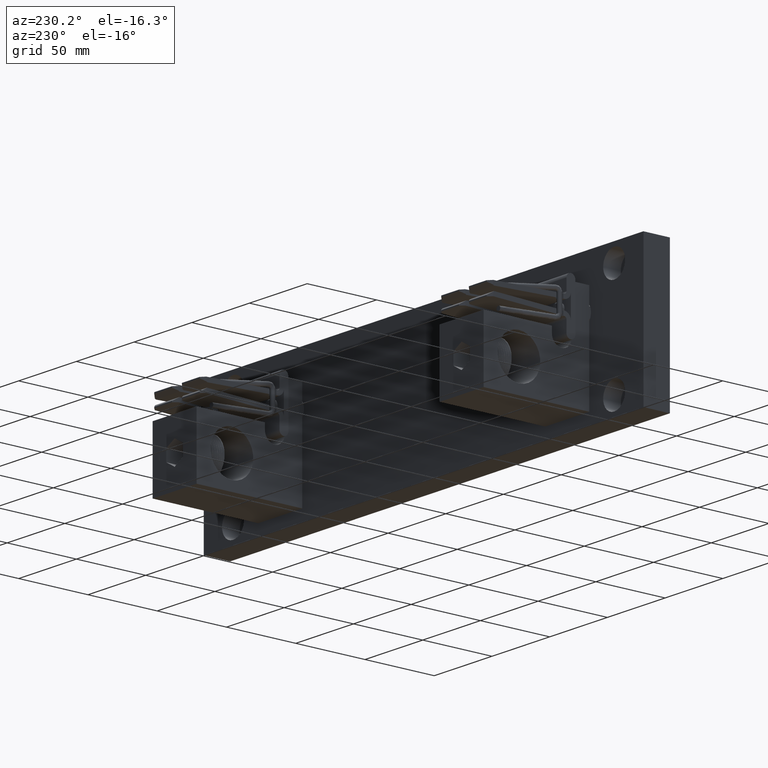
[diagram: clean part render]
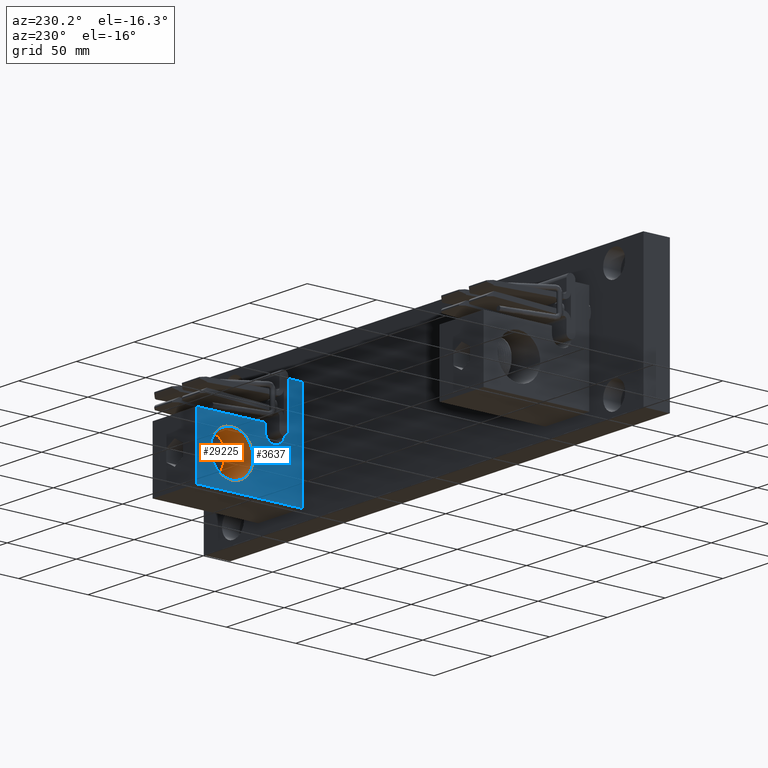
[diagram: same view with the hole feature highlighted: cylindrical wall and planar end face, labeled with their STEP entity ids]
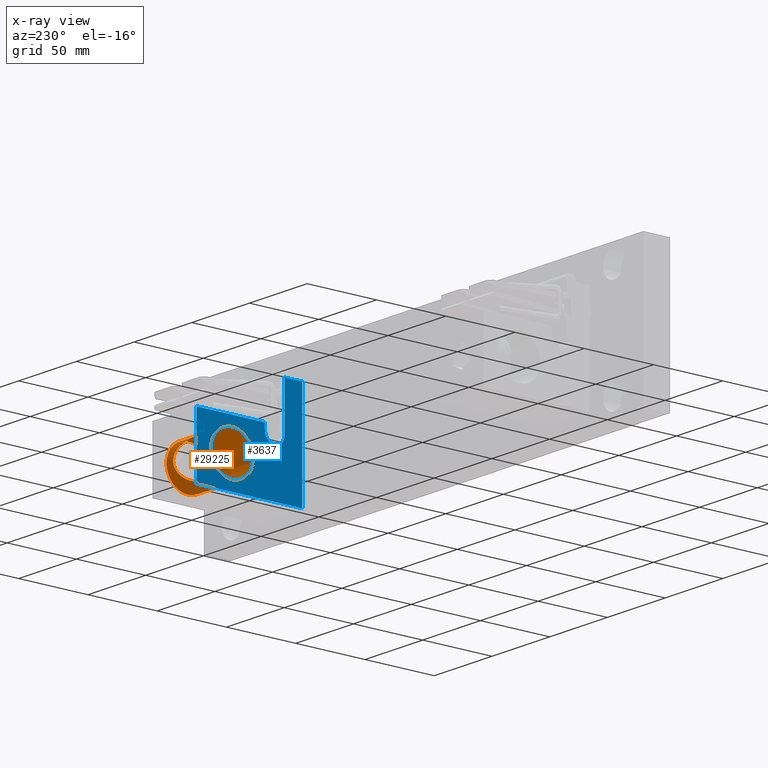
[diagram: x-ray of the same camera — body ghosted, the hole faces saturated]
A machine part, auxiliary view. The highlighted faces form one hole feature of diameter 30.9372 mm: the cylindrical wall (entity #29225, orange) and its adjacent planar end face (entity #3637, blue) — they share a circular edge in the B-rep.
The next image is the same camera in x-ray (body ghosted, the hole faces saturated) — the bore reads through the body.
Wall:
#113 = CARTESIAN_POINT ( 'NONE',  ( 9.280179660203495800, 2.097324770169595200, -1.255977167398705500 ) ) ;
#172 = DIRECTION ( 'NONE',  ( -1.000000000000000000, 3.491106940328970000E-017, 2.775557561562891400E-016 ) ) ;
#203 = CARTESIAN_POINT ( 'NONE',  ( 9.342198515827526300, 2.045330027291612400, -1.646601566682456900 ) ) ;
#289 = CARTESIAN_POINT ( 'NONE',  ( 10.05333738346930000, 1.907558894405746200, -1.827675475046670400 ) ) ;
#307 = CARTESIAN_POINT ( 'NONE',  ( 9.664107462186631600, 1.835360832578286000, -1.883389140935382000 ) ) ;
#406 = CARTESIAN_POINT ( 'NONE',  ( 10.30852669709524600, 2.104772704688471700, -1.448951375156654100 ) ) ;
#471 = EDGE_CURVE ( 'NONE', #29269, #29269, #11773, .T. ) ;
#905 = CARTESIAN_POINT ( 'NONE',  ( 10.25510471420381400, 2.059592964053454300, -1.132284568991641900 ) ) ;
#1007 = CARTESIAN_POINT ( 'NONE',  ( 9.964749116968567600, 1.856666003614545500, -0.8812888386536245100 ) ) ;
#1083 = CIRCLE ( 'NONE', #25017, 0.6089999999999994300 ) ;
#1111 = CARTESIAN_POINT ( 'NONE',  ( 9.699312747223444800, 1.824085987010029000, -0.8593874279365532100 ) ) ;
#1197 = CARTESIAN_POINT ( 'NONE',  ( 9.380811610457286100, 2.013994107817656000, -1.046868209804588100 ) ) ;
#1501 = AXIS2_PLACEMENT_3D ( 'NONE', #13739, #172, #16071 ) ;
#1852 = EDGE_LOOP ( 'NONE', ( #8875 ) ) ;
#2376 = CARTESIAN_POINT ( 'NONE',  ( 9.266642865541179200, 2.108920179919667500, -1.336854587295540200 ) ) ;
#2472 = AXIS2_PLACEMENT_3D ( 'NONE', #22743, #20899, #5509 ) ;
#2482 = CARTESIAN_POINT ( 'NONE',  ( 9.380132644617587400, 2.014533919914874600, -1.702311844670035600 ) ) ;
#2558 = CARTESIAN_POINT ( 'NONE',  ( 10.10681634831635000, 1.943709035272325400, -1.792902677304044800 ) ) ;
#2573 = CARTESIAN_POINT ( 'NONE',  ( 9.716131415398185900, 1.819396299210058100, -1.893537500722201100 ) ) ;
#3021 = EDGE_LOOP ( 'NONE', ( #15742 ) ) ;
#3058 = CARTESIAN_POINT ( 'NONE',  ( 10.31342491730299000, 2.108978440829739400, -1.394029742544431000 ) ) ;
#3168 = CARTESIAN_POINT ( 'NONE',  ( 10.20939119500257800, 2.022243346142678100, -1.061323011078412400 ) ) ;
#3267 = CARTESIAN_POINT ( 'NONE',  ( 9.915526994470585700, 1.835222296419632300, -0.8665196678240912900 ) ) ;
#3377 = CARTESIAN_POINT ( 'NONE',  ( 9.664875633266415600, 1.835074104484781400, -0.8664225621004174600 ) ) ;
#4454 = CARTESIAN_POINT ( 'NONE',  ( 9.790000000000000900, 1.811257285055306100, -1.898450000000000900 ) ) ;
#4706 = CARTESIAN_POINT ( 'NONE',  ( 9.267453706317184000, 2.108222631414180500, -1.410843202185365000 ) ) ;
#4781 = CARTESIAN_POINT ( 'NONE',  ( 9.790000000000000900, 1.811257285055306600, -1.898450000000000600 ) ) ;
#4796 = CARTESIAN_POINT ( 'NONE',  ( 9.435928179579315500, 1.971372496849789000, -1.760866404997216500 ) ) ;
#4879 = CARTESIAN_POINT ( 'NONE',  ( 10.16630399076150600, 1.988292195777868100, -1.739219579181466900 ) ) ;
#4892 = CARTESIAN_POINT ( 'NONE',  ( 9.771296366142740600, 1.811257285055306600, -1.898450000000000900 ) ) ;
#4955 = CARTESIAN_POINT ( 'NONE',  ( 10.54000000000000100, 1.499999999999999800, -0.7660000000000015700 ) ) ;
#5265 = VERTEX_POINT ( 'NONE', #21934 ) ;
#5392 = CARTESIAN_POINT ( 'NONE',  ( 10.31253900496889700, 2.108216363005187800, -1.339037598365025800 ) ) ;
#5503 = CARTESIAN_POINT ( 'NONE',  ( 10.17787982591034900, 1.997281598853107400, -1.023121777459411700 ) ) ;
#5509 = DIRECTION ( 'NONE',  ( 0.0000000000000000000, 0.0000000000000000000, 1.000000000000000000 ) ) ;
#5604 = CARTESIAN_POINT ( 'NONE',  ( 9.863475976142373400, 1.819311141131618100, -0.8564103436430562400 ) ) ;
#5701 = CARTESIAN_POINT ( 'NONE',  ( 9.615882349474922800, 1.856355943382902900, -0.8810654201648838700 ) ) ;
#6887 = CARTESIAN_POINT ( 'NONE',  ( 9.326117067337564800, 2.058610361940258500, -1.131876949619347500 ) ) ;
#6983 = CARTESIAN_POINT ( 'NONE',  ( 9.274116560606360700, 2.102505630132347500, -1.465512193281022900 ) ) ;
#7064 = CARTESIAN_POINT ( 'NONE',  ( 9.827036078031509800, 1.812950835973183400, -1.897452140939300400 ) ) ;
#7081 = CARTESIAN_POINT ( 'NONE',  ( 9.472969311673287200, 1.944202337401933300, -1.791834356217677900 ) ) ;
#7177 = CARTESIAN_POINT ( 'NONE',  ( 10.19892022436389000, 2.013861333578023800, -1.702193664357927000 ) ) ;
#7222 = DIRECTION ( 'NONE',  ( -1.000000000000000000, 3.491106940328970000E-017, 2.775557561562891400E-016 ) ) ;
#7679 = CARTESIAN_POINT ( 'NONE',  ( 10.30845891483400800, 2.104714970127615100, -1.302303516476782900 ) ) ;
#7780 = CARTESIAN_POINT ( 'NONE',  ( 10.13223287827729300, 1.962364658960769700, -0.9776191655282185900 ) ) ;
#7889 = CARTESIAN_POINT ( 'NONE',  ( 9.826939586945515600, 1.813306831308582500, -0.8527732884213834500 ) ) ;
#7994 = CARTESIAN_POINT ( 'NONE',  ( 9.554721188711177100, 1.889356783935038900, -0.9062514264342249600 ) ) ;
#8875 = ORIENTED_EDGE ( 'NONE', *, *, #28782, .F. ) ;
#9156 = CARTESIAN_POINT ( 'NONE',  ( 9.304228463084081500, 2.076923159088707400, -1.179220980598104700 ) ) ;
#9248 = CARTESIAN_POINT ( 'NONE',  ( 9.286253415734380600, 2.092142839192565600, -1.518401615495040200 ) ) ;
#9324 = CARTESIAN_POINT ( 'NONE',  ( 9.880827100769188600, 1.823825352755908700, -1.890813781242954000 ) ) ;
#9342 = CARTESIAN_POINT ( 'NONE',  ( 9.525959708530040300, 1.907699496602450500, -1.828111436417922300 ) ) ;
#9428 = CARTESIAN_POINT ( 'NONE',  ( 10.23772033283577800, 2.045168269973869400, -1.648230773953770000 ) ) ;
#9897 = FACE_OUTER_BOUND ( 'NONE', #29247, .T. ) ;
#9944 = CARTESIAN_POINT ( 'NONE',  ( 10.30392146881436900, 2.100828939997650700, -1.275165215486350200 ) ) ;
#10043 = CARTESIAN_POINT ( 'NONE',  ( 10.06733353357101500, 1.916772626162443800, -0.9307649896137129000 ) ) ;
#10139 = CARTESIAN_POINT ( 'NONE',  ( 9.799280635462768200, 1.811260116634077400, -0.8515516837321189800 ) ) ;
#10242 = CARTESIAN_POINT ( 'NONE',  ( 9.486711565219154700, 1.934477017025520100, -0.9480676338777450600 ) ) ;
#10799 = ORIENTED_EDGE ( 'NONE', *, *, #22554, .T. ) ;
#11428 = CARTESIAN_POINT ( 'NONE',  ( 9.289629798954793600, 2.089278617203078200, -1.221023262503960100 ) ) ;
#11518 = CARTESIAN_POINT ( 'NONE',  ( 9.303624671840648100, 2.077431765507186800, -1.569278850323326100 ) ) ;
#11592 = CARTESIAN_POINT ( 'NONE',  ( 9.964672663139234400, 1.856022455920142100, -1.869542607008254600 ) ) ;
#11606 = CARTESIAN_POINT ( 'NONE',  ( 9.599248436497982000, 1.864841591607055800, -1.862731617612935600 ) ) ;
#11696 = CARTESIAN_POINT ( 'NONE',  ( 10.28306021894503400, 2.083034517968975800, -1.554258277017968700 ) ) ;
#11773 = CIRCLE ( 'NONE', #2472, 0.6089999999999999900 ) ;
#12187 = CARTESIAN_POINT ( 'NONE',  ( 10.29362008017184500, 2.092035339655246700, -1.231176567592090900 ) ) ;
#12296 = CARTESIAN_POINT ( 'NONE',  ( 10.02505908174886600, 1.889885770684362100, -0.9070169607372493600 ) ) ;
#12402 = CARTESIAN_POINT ( 'NONE',  ( 9.753437543881730700, 1.812883834307803100, -0.8525075735982097200 ) ) ;
#12500 = CARTESIAN_POINT ( 'NONE',  ( 9.448704020298402300, 1.961832882506712200, -0.9777884892052093300 ) ) ;
#13681 = CARTESIAN_POINT ( 'NONE',  ( 9.282341377183609400, 2.095480345256516100, -1.247076543476164400 ) ) ;
#13739 = CARTESIAN_POINT ( 'NONE',  ( 9.040000000000000900, 1.499999999999999800, -1.375000000000001100 ) ) ;
#13776 = CARTESIAN_POINT ( 'NONE',  ( 9.325392732115382400, 2.059212466608186800, -1.616730566706456200 ) ) ;
#13851 = CARTESIAN_POINT ( 'NONE',  ( 10.02487843888705600, 1.889776289595450200, -1.843074547681421000 ) ) ;
#13865 = CARTESIAN_POINT ( 'NONE',  ( 9.647341380086791300, 1.842086136445423700, -1.878924161717898000 ) ) ;
#13945 = CARTESIAN_POINT ( 'NONE',  ( 10.30557238892089900, 2.102239204130067000, -1.467272621108470100 ) ) ;
#14056 = VERTEX_POINT ( 'NONE', #4454 ) ;
#14428 = CARTESIAN_POINT ( 'NONE',  ( 10.27629466320642300, 2.077363659359441300, -1.180511642204475200 ) ) ;
#14536 = CARTESIAN_POINT ( 'NONE',  ( 9.980303333754980200, 1.864606734211517800, -0.8870929829268117100 ) ) ;
#14631 = CARTESIAN_POINT ( 'NONE',  ( 9.717047519317683100, 1.819577241989803800, -0.8565808280470933500 ) ) ;
#14739 = CARTESIAN_POINT ( 'NONE',  ( 9.401955239346211400, 1.997227208084751700, -1.022210476329406600 ) ) ;
#15742 = ORIENTED_EDGE ( 'NONE', *, *, #471, .F. ) ;
#15858 = FACE_BOUND ( 'NONE', #1852, .T. ) ;
#15920 = CARTESIAN_POINT ( 'NONE',  ( 9.270580536859522900, 2.105526011989683700, -1.300593678888188700 ) ) ;
#16000 = CARTESIAN_POINT ( 'NONE',  ( 9.808703633857257700, 1.811257285055306600, -1.898450000000000600 ) ) ;
#16014 = CARTESIAN_POINT ( 'NONE',  ( 9.351322643546554400, 2.037854183421200300, -1.661082465344141800 ) ) ;
#16071 = DIRECTION ( 'NONE',  ( 0.0000000000000000000, 0.0000000000000000000, 1.000000000000000000 ) ) ;
#16093 = CARTESIAN_POINT ( 'NONE',  ( 10.06704365446946200, 1.916581669018505100, -1.819410341866392700 ) ) ;
#16108 = CARTESIAN_POINT ( 'NONE',  ( 9.698472518594847700, 1.824029685064318100, -1.890685146039456000 ) ) ;
#16185 = CARTESIAN_POINT ( 'NONE',  ( 10.31244052664127300, 2.108131723077256900, -1.412344847179440000 ) ) ;
#16656 = CARTESIAN_POINT ( 'NONE',  ( 10.23827175813145700, 2.045619674513944600, -1.102636943290466400 ) ) ;
#16751 = CARTESIAN_POINT ( 'NONE',  ( 9.932399410262315000, 1.841980958967212000, -0.8710055826933955600 ) ) ;
#16854 = CARTESIAN_POINT ( 'NONE',  ( 9.690601547277504200, 1.826642790545077300, -0.8609993639652586700 ) ) ;
#16947 = CARTESIAN_POINT ( 'NONE',  ( 9.352137325899093400, 2.037190139223976200, -1.087680303542287100 ) ) ;
#18173 = CARTESIAN_POINT ( 'NONE',  ( 9.266505975167815400, 2.109037840360608500, -1.392128149778477700 ) ) ;
#18264 = CARTESIAN_POINT ( 'NONE',  ( 9.401320636489710800, 1.997723881484822200, -1.727090316491668400 ) ) ;
#18343 = CARTESIAN_POINT ( 'NONE',  ( 10.13155955008753000, 1.961863544495720200, -1.772969530909886500 ) ) ;
#18357 = CARTESIAN_POINT ( 'NONE',  ( 9.752682457353120800, 1.812969690460924700, -1.897441488070291900 ) ) ;
#18854 = CARTESIAN_POINT ( 'NONE',  ( 10.31347413874603400, 2.109020747822007500, -1.357376117934730600 ) ) ;
#18949 = CARTESIAN_POINT ( 'NONE',  ( 10.19915342784114500, 2.014047426531653700, -1.048101674319966300 ) ) ;
#19056 = CARTESIAN_POINT ( 'NONE',  ( 9.881110461621938500, 1.823910601698979700, -0.8592402125663749500 ) ) ;
#19149 = CARTESIAN_POINT ( 'NONE',  ( 9.648265642599243500, 1.841703424372293800, -0.8708177935374356000 ) ) ;
#20310 = B_SPLINE_CURVE_WITH_KNOTS ( 'NONE', 3,
 ( #4781, #16000, #7064, #22726, #9324, #25020, #11592, #27295, #13851, #289, #16093, #2558, #18343, #4879, #20589, #7177, #22821, #9428, #25124, #11696, #27393, #13945, #406, #16185, #3058, #18854, #5392, #21088, #7679, #23341, #9944, #25637, #12187, #27886, #14428, #905, #16656, #3168, #18949, #5503, #21189, #7780, #23436, #10043, #25732, #12296, #27977, #14536, #1007, #16751, #3267, #19056, #5604, #21289, #7889, #23537, #10139, #25829, #12402, #28086, #14631, #1111, #16854, #3377, #19149, #5701, #21392, #7994, #23633, #10242, #25920, #12500, #28180, #14739, #1197, #16947, #27985, #6887, #22562, #9156, #24838, #11428, #27120, #13681, #113, #15920, #2376, #18173, #4706, #20414, #6983, #22642, #9248, #24931, #11518, #27212, #13776, #203, #16014, #2482, #18264, #4796, #20510, #7081, #22739, #9342, #25037, #11606, #27312, #13865, #307, #16108, #2573, #18357, #4892, #20604 ),
 .UNSPECIFIED., .T., .F.,
 ( 4, 2, 2, 2, 2, 2, 2, 2, 2, 2, 2, 2, 2, 2, 2, 2, 2, 2, 2, 2, 2, 2, 2, 2, 2, 2, 2, 2, 2, 2, 2, 2, 2, 2, 2, 2, 2, 2, 2, 2, 2, 2, 2, 2, 2, 2, 2, 2, 2, 2, 2, 2, 2, 2, 2, 2, 2, 4 ),
 ( 0.0000000000000000000, 0.001400456203850310100, 0.002800912407700701800, 0.005601824815401486800, 0.007002281019251809300, 0.008402737223102130900, 0.01120364963080277900, 0.01260410583465315500, 0.01400456203850352800, 0.01680547444620428600, 0.01960638685390505100, 0.02100684305775540900, 0.02240729926160576700, 0.02380775546545614900, 0.02450798356738133700, 0.02520821166930652800, 0.02660866787315694500, 0.02800912407700735500, 0.03081003648470810600, 0.03221049268855848800, 0.03361094889240887100, 0.03641186130010973900, 0.03781231750396017700, 0.03921277370781060800, 0.04061322991166104600, 0.04201368611551147700, 0.04341414231936191500, 0.04411437042128713000, 0.04481459852321235300, 0.04621505472706279000, 0.04691528282898796400, 0.04761551093091313800, 0.04901596713476356900, 0.05041642333861400000, 0.05321733574631479900, 0.05461779195016516800, 0.05601824815401553600, 0.05881916056171621700, 0.06021961676556655800, 0.06162007296941689900, 0.06302052917326724000, 0.06372075727519238600, 0.06442098537711753200, 0.06722189778481815800, 0.06862235398866847700, 0.07002281019251878300, 0.07142326639636908900, 0.07282372260021940900, 0.07422417880406971500, 0.07562463500792002100, 0.07842554741562067500, 0.07982600361947102300, 0.08122645982332137000, 0.08402737223102213500, 0.08542782843487251000, 0.08682828463872288600, 0.08822874084257327500, 0.08962919704642365000 ),
 .UNSPECIFIED. ) ;
#20414 = CARTESIAN_POINT ( 'NONE',  ( 9.271266990211867000, 2.104949647298514300, -1.447494335921463400 ) ) ;
#20510 = CARTESIAN_POINT ( 'NONE',  ( 9.447940679144762700, 1.962397921920482100, -1.771553601522376100 ) ) ;
#20589 = CARTESIAN_POINT ( 'NONE',  ( 10.17753042314375200, 1.997008600644645900, -1.727266397812512500 ) ) ;
#20604 = CARTESIAN_POINT ( 'NONE',  ( 9.790000000000000900, 1.811257285055306600, -1.898450000000000600 ) ) ;
#20643 = CARTESIAN_POINT ( 'NONE',  ( 9.040000000000000900, 1.499999999999999800, -1.375000000000001100 ) ) ;
#20899 = DIRECTION ( 'NONE',  ( -1.000000000000000000, 3.491106940328970000E-017, 2.775557561562891400E-016 ) ) ;
#21088 = CARTESIAN_POINT ( 'NONE',  ( 10.30966745986850300, 2.105751702514752700, -1.311511933876268600 ) ) ;
#21189 = CARTESIAN_POINT ( 'NONE',  ( 10.16679744456471100, 1.988673276408671000, -1.011293620774445600 ) ) ;
#21289 = CARTESIAN_POINT ( 'NONE',  ( 9.836213923088394000, 1.814542161335162200, -0.8535139619554511500 ) ) ;
#21392 = CARTESIAN_POINT ( 'NONE',  ( 9.600108044630147200, 1.864390483379951600, -0.8869310415257180000 ) ) ;
#21934 = CARTESIAN_POINT ( 'NONE',  ( 9.040000000000000900, 1.499999999999999800, -0.7660000000000015700 ) ) ;
#22554 = EDGE_CURVE ( 'NONE', #5265, #5265, #1083, .T. ) ;
#22562 = CARTESIAN_POINT ( 'NONE',  ( 9.318320873842974800, 2.065108435140991200, -1.147355073714868600 ) ) ;
#22642 = CARTESIAN_POINT ( 'NONE',  ( 9.281609623974802000, 2.096102412120274000, -1.500965891169428100 ) ) ;
#22726 = CARTESIAN_POINT ( 'NONE',  ( 9.863057224218724900, 1.819223922460242000, -1.893642991505207300 ) ) ;
#22739 = CARTESIAN_POINT ( 'NONE',  ( 9.485976779782937700, 1.934990048804267700, -1.801411328152656300 ) ) ;
#22743 = CARTESIAN_POINT ( 'NONE',  ( 10.54000000000000100, 1.499999999999999800, -1.375000000000001600 ) ) ;
#22821 = CARTESIAN_POINT ( 'NONE',  ( 10.20904890506134200, 2.021968911426762700, -1.689125898501507800 ) ) ;
#22873 = DIRECTION ( 'NONE',  ( 0.0000000000000000000, 0.0000000000000000000, 1.000000000000000000 ) ) ;
#23341 = CARTESIAN_POINT ( 'NONE',  ( 10.30558632586584300, 2.102253939916893800, -1.284142057762349500 ) ) ;
#23436 = CARTESIAN_POINT ( 'NONE',  ( 10.10746273818178200, 1.944163742256489000, -0.9575646929766301600 ) ) ;
#23537 = CARTESIAN_POINT ( 'NONE',  ( 9.808486448002007300, 1.811670316553646100, -0.8517949516583489500 ) ) ;
#23633 = CARTESIAN_POINT ( 'NONE',  ( 9.526611410314776800, 1.907278616284581600, -0.9215165681285758500 ) ) ;
#24658 = CYLINDRICAL_SURFACE ( 'NONE', #1501, 0.6089999999999996500 ) ;
#24838 = CARTESIAN_POINT ( 'NONE',  ( 9.297918731863175500, 2.082251220991548500, -1.195631627133869400 ) ) ;
#24931 = CARTESIAN_POINT ( 'NONE',  ( 9.297308042341645900, 2.082767437310099700, -1.552705597392540300 ) ) ;
#25017 = AXIS2_PLACEMENT_3D ( 'NONE', #20643, #7222, #22873 ) ;
#25020 = CARTESIAN_POINT ( 'NONE',  ( 9.932800141399544800, 1.840883814953337100, -1.879838675948488900 ) ) ;
#25037 = CARTESIAN_POINT ( 'NONE',  ( 9.554059300147242700, 1.889766126412528100, -1.843407341791490700 ) ) ;
#25124 = CARTESIAN_POINT ( 'NONE',  ( 10.25458164257659500, 2.059157377002534000, -1.618733064573550900 ) ) ;
#25637 = CARTESIAN_POINT ( 'NONE',  ( 10.29826720525651300, 2.095997328484607200, -1.248533475616817400 ) ) ;
#25732 = CARTESIAN_POINT ( 'NONE',  ( 10.05347108801948900, 1.907645871427263100, -0.9224031786147318700 ) ) ;
#25829 = CARTESIAN_POINT ( 'NONE',  ( 9.771725101368517100, 1.811251665810572600, -0.8515466586474921300 ) ) ;
#25920 = CARTESIAN_POINT ( 'NONE',  ( 9.473800936594878800, 1.943608513559268000, -0.9575337350514703200 ) ) ;
#27099 = FACE_OUTER_BOUND ( 'NONE', #3021, .T. ) ;
#27120 = CARTESIAN_POINT ( 'NONE',  ( 9.287063240953992600, 2.091460013751302000, -1.229616698176387200 ) ) ;
#27212 = CARTESIAN_POINT ( 'NONE',  ( 9.317663730719253600, 2.065657171131666900, -1.601282302107391200 ) ) ;
#27295 = CARTESIAN_POINT ( 'NONE',  ( 10.01009543489003000, 1.881002868824170400, -1.850214329291778300 ) ) ;
#27312 = CARTESIAN_POINT ( 'NONE',  ( 9.614826400650681400, 1.856871451396171900, -1.868563828384569800 ) ) ;
#27393 = CARTESIAN_POINT ( 'NONE',  ( 10.29413227921642700, 2.092464974105978600, -1.520490332487708800 ) ) ;
#27886 = CARTESIAN_POINT ( 'NONE',  ( 10.28265564908501200, 2.082736858988501400, -1.197211428132991800 ) ) ;
#27977 = CARTESIAN_POINT ( 'NONE',  ( 10.01045932556905000, 1.881215196476327700, -0.8999565262871630500 ) ) ;
#27985 = CARTESIAN_POINT ( 'NONE',  ( 9.343091629753422100, 2.044596412628637300, -1.101926564006240300 ) ) ;
#28086 = CARTESIAN_POINT ( 'NONE',  ( 9.726123707825053100, 1.817617496322948600, -0.8553813577399892500 ) ) ;
#28180 = CARTESIAN_POINT ( 'NONE',  ( 9.436622580070857000, 1.970850787498548400, -0.9884975782354443700 ) ) ;
#28782 = EDGE_CURVE ( 'NONE', #14056, #14056, #20310, .T. ) ;
#29225 = ADVANCED_FACE ( 'NONE', ( #9897, #27099, #15858 ), #24658, .F. ) ;
#29247 = EDGE_LOOP ( 'NONE', ( #10799 ) ) ;
#29269 = VERTEX_POINT ( 'NONE', #4955 ) ;
End face:
#87 = LINE ( 'NONE', #5402, #19160 ) ;
#218 = CARTESIAN_POINT ( 'NONE',  ( 9.040000000000000900, -6.829619984160658000E-017, 0.6249999999999983300 ) ) ;
#607 = EDGE_CURVE ( 'NONE', #17572, #19977, #15680, .T. ) ;
#887 = CARTESIAN_POINT ( 'NONE',  ( 9.040000000000000900, -0.5000000000000001100, 0.6249999999999983300 ) ) ;
#909 = VERTEX_POINT ( 'NONE', #14672 ) ;
#1048 = VECTOR ( 'NONE', #7274, 39.37007874015748100 ) ;
#1083 = CIRCLE ( 'NONE', #25017, 0.6089999999999994300 ) ;
#1198 = VERTEX_POINT ( 'NONE', #12986 ) ;
#1323 = EDGE_CURVE ( 'NONE', #18828, #1198, #26011, .T. ) ;
#1359 = EDGE_CURVE ( 'NONE', #909, #18828, #27722, .T. ) ;
#2457 = ORIENTED_EDGE ( 'NONE', *, *, #1323, .T. ) ;
#2812 = EDGE_CURVE ( 'NONE', #17714, #14703, #87, .T. ) ;
#2882 = CARTESIAN_POINT ( 'NONE',  ( 9.040000000000000900, -2.048885995248197400E-016, -0.6700000000000013700 ) ) ;
#3637 = ADVANCED_FACE ( 'NONE', ( #26908, #18082 ), #18044, .T. ) ;
#4104 = CARTESIAN_POINT ( 'NONE',  ( 9.040000000000000900, -0.5000000000000001100, 0.6249999999999983300 ) ) ;
#4362 = EDGE_CURVE ( 'NONE', #14703, #909, #23255, .T. ) ;
#4920 = AXIS2_PLACEMENT_3D ( 'NONE', #22120, #8722, #24375 ) ;
#5265 = VERTEX_POINT ( 'NONE', #21934 ) ;
#5402 = CARTESIAN_POINT ( 'NONE',  ( 9.040000000000000900, 2.500000000000000400, -0.4950000000000011600 ) ) ;
#7155 = CARTESIAN_POINT ( 'NONE',  ( 9.039999999999999100, 2.500000000000000000, -2.255000000000001700 ) ) ;
#7222 = DIRECTION ( 'NONE',  ( -1.000000000000000000, 3.491106940328970000E-017, 2.775557561562891400E-016 ) ) ;
#7274 = DIRECTION ( 'NONE',  ( -3.491106940328970000E-017, -1.000000000000000000, 2.774784739887077200E-017 ) ) ;
#7530 = ORIENTED_EDGE ( 'NONE', *, *, #607, .T. ) ;
#8722 = DIRECTION ( 'NONE',  ( 1.000000000000000000, -3.491106940328970000E-017, -2.775557561562891400E-016 ) ) ;
#10015 = ORIENTED_EDGE ( 'NONE', *, *, #19878, .T. ) ;
#10316 = CIRCLE ( 'NONE', #4920, 0.2799999999999999700 ) ;
#12268 = CARTESIAN_POINT ( 'NONE',  ( 9.040000000000000900, 2.500000000000000400, -0.4950000000000011600 ) ) ;
#12846 = ORIENTED_EDGE ( 'NONE', *, *, #18146, .T. ) ;
#12941 = ORIENTED_EDGE ( 'NONE', *, *, #4362, .T. ) ;
#12986 = CARTESIAN_POINT ( 'NONE',  ( 9.040000000000000900, -6.829619984160658000E-017, 0.6249999999999983300 ) ) ;
#13122 = LINE ( 'NONE', #26814, #13785 ) ;
#13173 = DIRECTION ( 'NONE',  ( 2.775557561562891400E-016, -5.945035953114840700E-018, 1.000000000000000000 ) ) ;
#13768 = ORIENTED_EDGE ( 'NONE', *, *, #22554, .F. ) ;
#13785 = VECTOR ( 'NONE', #29086, 39.37007874015748100 ) ;
#14672 = CARTESIAN_POINT ( 'NONE',  ( 9.039999999999999100, -0.5000000000000001100, -2.255000000000001200 ) ) ;
#14703 = VERTEX_POINT ( 'NONE', #28468 ) ;
#15505 = VECTOR ( 'NONE', #13173, 39.37007874015748100 ) ;
#15530 = DIRECTION ( 'NONE',  ( 3.491106940328971200E-017, 1.000000000000000000, 5.945035953114833700E-018 ) ) ;
#15680 = LINE ( 'NONE', #24324, #15505 ) ;
#15712 = ORIENTED_EDGE ( 'NONE', *, *, #1359, .T. ) ;
#15797 = DIRECTION ( 'NONE',  ( 2.775557561562891400E-016, -5.945035953114840700E-018, 1.000000000000000000 ) ) ;
#15816 = DIRECTION ( 'NONE',  ( -1.000000000000000000, 3.491106940328970000E-017, 2.775557561562891400E-016 ) ) ;
#15912 = CARTESIAN_POINT ( 'NONE',  ( 9.040000000000000900, 0.2799999999999998000, -0.6700000000000013700 ) ) ;
#16543 = ORIENTED_EDGE ( 'NONE', *, *, #21543, .T. ) ;
#17572 = VERTEX_POINT ( 'NONE', #24520 ) ;
#17714 = VERTEX_POINT ( 'NONE', #12268 ) ;
#18044 = PLANE ( 'NONE',  #18821 ) ;
#18082 = FACE_OUTER_BOUND ( 'NONE', #20500, .T. ) ;
#18146 = EDGE_CURVE ( 'NONE', #20003, #17572, #10316, .T. ) ;
#18502 = ORIENTED_EDGE ( 'NONE', *, *, #2812, .T. ) ;
#18821 = AXIS2_PLACEMENT_3D ( 'NONE', #15912, #15816, #15797 ) ;
#18828 = VERTEX_POINT ( 'NONE', #4104 ) ;
#19160 = VECTOR ( 'NONE', #27688, 39.37007874015748100 ) ;
#19878 = EDGE_CURVE ( 'NONE', #1198, #20003, #21446, .T. ) ;
#19977 = VERTEX_POINT ( 'NONE', #23144 ) ;
#20003 = VERTEX_POINT ( 'NONE', #2882 ) ;
#20500 = EDGE_LOOP ( 'NONE', ( #12941, #15712, #2457, #10015, #12846, #7530, #16543, #18502 ) ) ;
#20526 = DIRECTION ( 'NONE',  ( -2.775557561562891400E-016, -9.953172055901887100E-017, -1.000000000000000000 ) ) ;
#20643 = CARTESIAN_POINT ( 'NONE',  ( 9.040000000000000900, 1.499999999999999800, -1.375000000000001100 ) ) ;
#21446 = LINE ( 'NONE', #218, #29200 ) ;
#21515 = VECTOR ( 'NONE', #29083, 39.37007874015748100 ) ;
#21543 = EDGE_CURVE ( 'NONE', #19977, #17714, #13122, .T. ) ;
#21934 = CARTESIAN_POINT ( 'NONE',  ( 9.040000000000000900, 1.499999999999999800, -0.7660000000000015700 ) ) ;
#22120 = CARTESIAN_POINT ( 'NONE',  ( 9.040000000000000900, 0.2799999999999998000, -0.6700000000000013700 ) ) ;
#22554 = EDGE_CURVE ( 'NONE', #5265, #5265, #1083, .T. ) ;
#22873 = DIRECTION ( 'NONE',  ( 0.0000000000000000000, 0.0000000000000000000, 1.000000000000000000 ) ) ;
#23144 = CARTESIAN_POINT ( 'NONE',  ( 9.040000000000000900, 0.5599999999999997200, -0.4950000000000011600 ) ) ;
#23255 = LINE ( 'NONE', #7155, #1048 ) ;
#24324 = CARTESIAN_POINT ( 'NONE',  ( 9.040000000000000900, 0.5599999999999997200, -0.6700000000000013700 ) ) ;
#24375 = DIRECTION ( 'NONE',  ( 0.0000000000000000000, 0.0000000000000000000, 1.000000000000000000 ) ) ;
#24520 = CARTESIAN_POINT ( 'NONE',  ( 9.040000000000000900, 0.5599999999999998300, -0.6700000000000013700 ) ) ;
#25017 = AXIS2_PLACEMENT_3D ( 'NONE', #20643, #7222, #22873 ) ;
#25317 = CARTESIAN_POINT ( 'NONE',  ( 9.039999999999999100, -0.5000000000000001100, -2.255000000000001200 ) ) ;
#26011 = LINE ( 'NONE', #887, #26792 ) ;
#26076 = EDGE_LOOP ( 'NONE', ( #13768 ) ) ;
#26792 = VECTOR ( 'NONE', #15530, 39.37007874015748100 ) ;
#26814 = CARTESIAN_POINT ( 'NONE',  ( 9.040000000000000900, 0.5599999999999997200, -0.4950000000000011600 ) ) ;
#26908 = FACE_BOUND ( 'NONE', #26076, .T. ) ;
#27688 = DIRECTION ( 'NONE',  ( -2.775557561562891400E-016, -3.044922360541878000E-016, -1.000000000000000000 ) ) ;
#27722 = LINE ( 'NONE', #25317, #21515 ) ;
#28468 = CARTESIAN_POINT ( 'NONE',  ( 9.039999999999999100, 2.500000000000000000, -2.255000000000001700 ) ) ;
#29083 = DIRECTION ( 'NONE',  ( 2.775557561562891400E-016, -5.945035953114840700E-018, 1.000000000000000000 ) ) ;
#29086 = DIRECTION ( 'NONE',  ( 3.491106940328971200E-017, 1.000000000000000000, 5.945035953114833700E-018 ) ) ;
#29200 = VECTOR ( 'NONE', #20526, 39.37007874015748100 ) ;